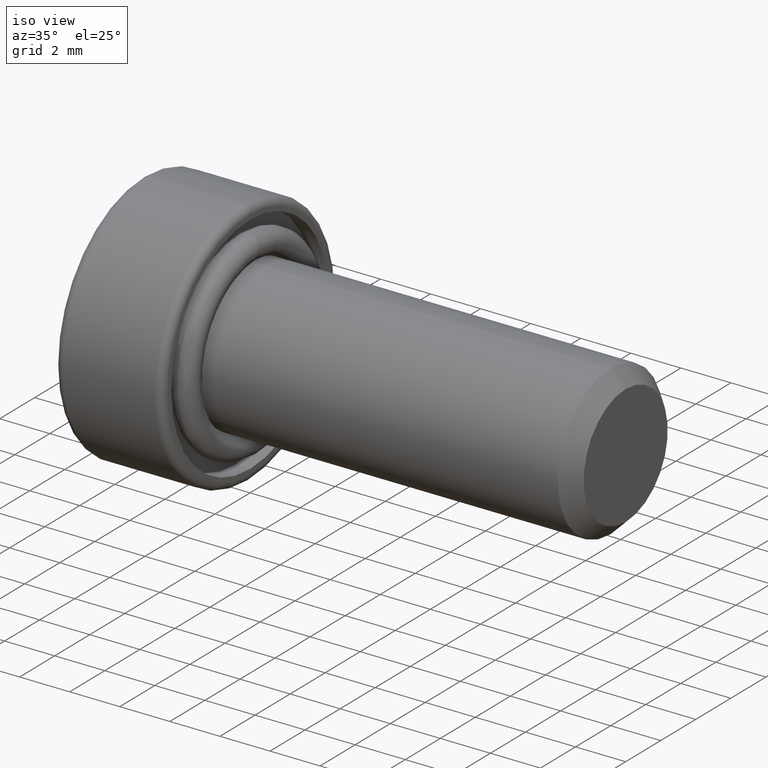
[diagram: clean part render]
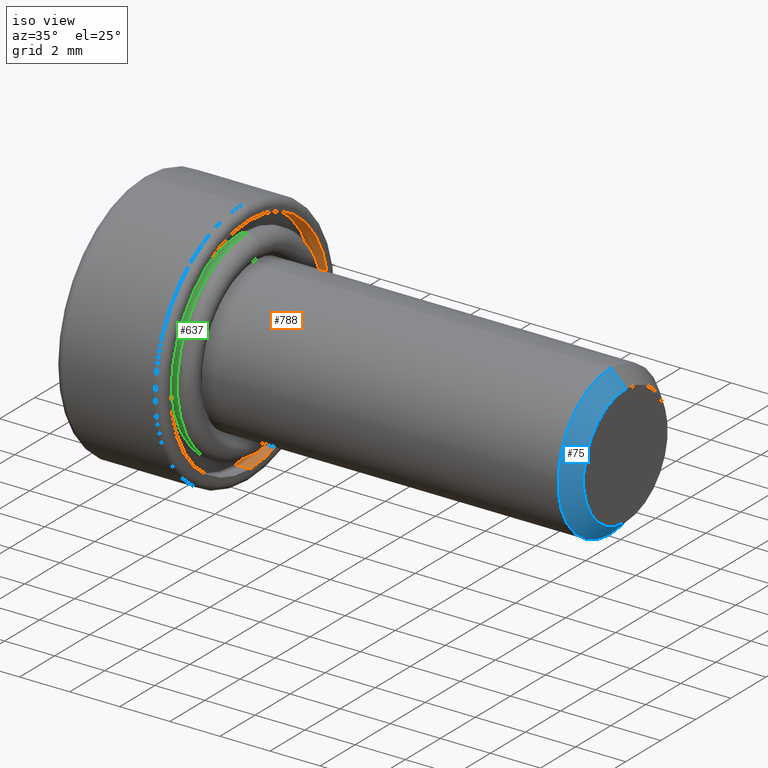
[diagram: same view with three faces highlighted in distinct colors, each labeled with its STEP entity id]
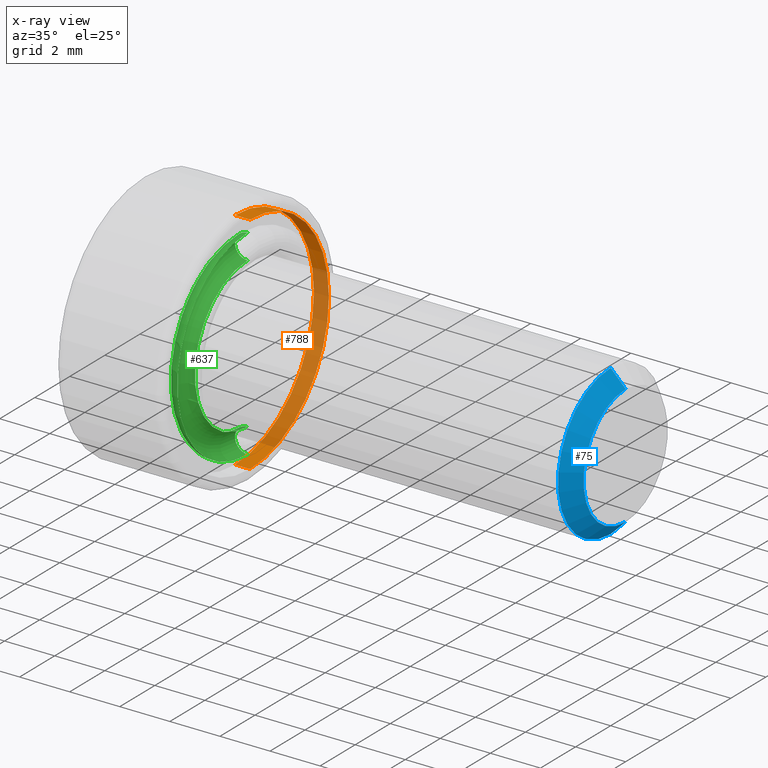
[diagram: x-ray of the same camera — body ghosted, the three highlighted faces saturated]
A machine part, iso view with three faces highlighted in distinct colors.
The next image is the same camera in x-ray (body ghosted, the three faces saturated) — at least one of them is partly hidden behind the body in this view.
Their STEP definitions:

[orange] entity #788 — the highlighted cylindrical surface (partial cylindrical patch) has radius 4.5 mm, axis along (1, 0, 0).
#8 = CARTESIAN_POINT ( 'NONE',  ( -0.5999999999999999800, 0.0000000000000000000, 0.0000000000000000000 ) ) ;
#15 = EDGE_CURVE ( 'NONE', #808, #364, #651, .T. ) ;
#22 = ORIENTED_EDGE ( 'NONE', *, *, #24, .F. ) ;
#24 = EDGE_CURVE ( 'NONE', #42, #39, #818, .T. ) ;
#32 = AXIS2_PLACEMENT_3D ( 'NONE', #8, #192, #392 ) ;
#39 = VERTEX_POINT ( 'NONE', #205 ) ;
#42 = VERTEX_POINT ( 'NONE', #424 ) ;
#72 = EDGE_LOOP ( 'NONE', ( #22, #654, #754, #747 ) ) ;
#89 = FACE_OUTER_BOUND ( 'NONE', #72, .T. ) ;
#175 = CARTESIAN_POINT ( 'NONE',  ( -0.5999999999999999800, 0.0000000000000000000, -4.500000000000000000 ) ) ;
#192 = DIRECTION ( 'NONE',  ( 1.000000000000000000, 0.0000000000000000000, 0.0000000000000000000 ) ) ;
#205 = CARTESIAN_POINT ( 'NONE',  ( 0.0000000000000000000, 5.510910596163088600E-016, 4.500000000000000000 ) ) ;
#219 = AXIS2_PLACEMENT_3D ( 'NONE', #681, #469, #701 ) ;
#305 = CARTESIAN_POINT ( 'NONE',  ( -0.5999999999999999800, 0.0000000000000000000, 0.0000000000000000000 ) ) ;
#312 = DIRECTION ( 'NONE',  ( 1.000000000000000000, -0.0000000000000000000, -0.0000000000000000000 ) ) ;
#350 = VECTOR ( 'NONE', #312, 1000.000000000000000 ) ;
#364 = VERTEX_POINT ( 'NONE', #564 ) ;
#376 = EDGE_CURVE ( 'NONE', #808, #42, #579, .T. ) ;
#392 = DIRECTION ( 'NONE',  ( 0.0000000000000000000, 0.0000000000000000000, -1.000000000000000000 ) ) ;
#424 = CARTESIAN_POINT ( 'NONE',  ( -0.5999999999999999800, 5.510910596163088600E-016, 4.500000000000000000 ) ) ;
#469 = DIRECTION ( 'NONE',  ( 1.000000000000000000, 0.0000000000000000000, 0.0000000000000000000 ) ) ;
#478 = DIRECTION ( 'NONE',  ( 1.000000000000000000, -0.0000000000000000000, -0.0000000000000000000 ) ) ;
#485 = VECTOR ( 'NONE', #810, 1000.000000000000000 ) ;
#486 = CARTESIAN_POINT ( 'NONE',  ( -0.5999999999999999800, 5.510910596163088600E-016, 4.500000000000000000 ) ) ;
#564 = CARTESIAN_POINT ( 'NONE',  ( 0.0000000000000000000, 0.0000000000000000000, -4.500000000000000000 ) ) ;
#579 = CIRCLE ( 'NONE', #32, 4.500000000000000000 ) ;
#593 = AXIS2_PLACEMENT_3D ( 'NONE', #305, #478, #649 ) ;
#594 = CARTESIAN_POINT ( 'NONE',  ( -0.5999999999999999800, 0.0000000000000000000, -4.500000000000000000 ) ) ;
#649 = DIRECTION ( 'NONE',  ( 0.0000000000000000000, 0.0000000000000000000, -1.000000000000000000 ) ) ;
#650 = CYLINDRICAL_SURFACE ( 'NONE', #593, 4.500000000000000000 ) ;
#651 = LINE ( 'NONE', #175, #485 ) ;
#654 = ORIENTED_EDGE ( 'NONE', *, *, #376, .F. ) ;
#681 = CARTESIAN_POINT ( 'NONE',  ( 0.0000000000000000000, 0.0000000000000000000, 0.0000000000000000000 ) ) ;
#701 = DIRECTION ( 'NONE',  ( 0.0000000000000000000, 0.0000000000000000000, -1.000000000000000000 ) ) ;
#743 = CIRCLE ( 'NONE', #219, 4.500000000000000000 ) ;
#747 = ORIENTED_EDGE ( 'NONE', *, *, #752, .T. ) ;
#752 = EDGE_CURVE ( 'NONE', #364, #39, #743, .T. ) ;
#754 = ORIENTED_EDGE ( 'NONE', *, *, #15, .T. ) ;
#788 = ADVANCED_FACE ( 'NONE', ( #89 ), #650, .F. ) ;
#808 = VERTEX_POINT ( 'NONE', #594 ) ;
#810 = DIRECTION ( 'NONE',  ( 1.000000000000000000, -0.0000000000000000000, -0.0000000000000000000 ) ) ;
#818 = LINE ( 'NONE', #486, #350 ) ;

[blue] entity #75 — the highlighted conical surface has half-angle 45 deg.
#7 = DIRECTION ( 'NONE',  ( 0.0000000000000000000, 0.0000000000000000000, -1.000000000000000000 ) ) ;
#57 = EDGE_CURVE ( 'NONE', #199, #267, #783, .T. ) ;
#68 = CARTESIAN_POINT ( 'NONE',  ( 15.00000000000000000, 0.0000000000000000000, 0.0000000000000000000 ) ) ;
#75 = ADVANCED_FACE ( 'NONE', ( #292 ), #403, .T. ) ;
#82 = EDGE_CURVE ( 'NONE', #733, #708, #730, .T. ) ;
#94 = CARTESIAN_POINT ( 'NONE',  ( 14.40000000000000000, 3.673940397442060400E-016, -3.000000000000000400 ) ) ;
#109 = EDGE_CURVE ( 'NONE', #708, #267, #547, .T. ) ;
#113 = EDGE_LOOP ( 'NONE', ( #744, #726, #556, #230 ) ) ;
#121 = DIRECTION ( 'NONE',  ( -1.000000000000000000, 0.0000000000000000000, 0.0000000000000000000 ) ) ;
#186 = DIRECTION ( 'NONE',  ( -0.7071067811865489100, 8.659560562354918100E-017, -0.7071067811865462400 ) ) ;
#199 = VERTEX_POINT ( 'NONE', #618 ) ;
#230 = ORIENTED_EDGE ( 'NONE', *, *, #109, .F. ) ;
#251 = DIRECTION ( 'NONE',  ( 0.0000000000000000000, 0.0000000000000000000, -1.000000000000000000 ) ) ;
#267 = VERTEX_POINT ( 'NONE', #422 ) ;
#283 = CARTESIAN_POINT ( 'NONE',  ( 14.40000000000000000, 0.0000000000000000000, 0.0000000000000000000 ) ) ;
#289 = CIRCLE ( 'NONE', #663, 2.400000000000003000 ) ;
#292 = FACE_OUTER_BOUND ( 'NONE', #113, .T. ) ;
#300 = AXIS2_PLACEMENT_3D ( 'NONE', #313, #677, #383 ) ;
#310 = VECTOR ( 'NONE', #314, 999.9999999999998900 ) ;
#313 = CARTESIAN_POINT ( 'NONE',  ( 15.00000000000000000, 0.0000000000000000000, 0.0000000000000000000 ) ) ;
#314 = DIRECTION ( 'NONE',  ( -0.7071067811865489100, 0.0000000000000000000, 0.7071067811865462400 ) ) ;
#383 = DIRECTION ( 'NONE',  ( 0.0000000000000000000, 0.0000000000000000000, 1.000000000000000000 ) ) ;
#403 = CONICAL_SURFACE ( 'NONE', #300, 2.400000000000003000, 0.7853981633974465000 ) ;
#422 = CARTESIAN_POINT ( 'NONE',  ( 14.40000000000000000, 0.0000000000000000000, 3.000000000000000400 ) ) ;
#518 = DIRECTION ( 'NONE',  ( 1.000000000000000000, 0.0000000000000000000, 0.0000000000000000000 ) ) ;
#536 = AXIS2_PLACEMENT_3D ( 'NONE', #283, #121, #7 ) ;
#547 = CIRCLE ( 'NONE', #536, 3.000000000000000400 ) ;
#556 = ORIENTED_EDGE ( 'NONE', *, *, #57, .T. ) ;
#592 = VECTOR ( 'NONE', #186, 999.9999999999998900 ) ;
#618 = CARTESIAN_POINT ( 'NONE',  ( 15.00000000000000000, 0.0000000000000000000, 2.400000000000003000 ) ) ;
#659 = EDGE_CURVE ( 'NONE', #199, #733, #289, .T. ) ;
#663 = AXIS2_PLACEMENT_3D ( 'NONE', #68, #518, #251 ) ;
#677 = DIRECTION ( 'NONE',  ( -1.000000000000000000, 0.0000000000000000000, 0.0000000000000000000 ) ) ;
#689 = CARTESIAN_POINT ( 'NONE',  ( 15.00000000000000000, 3.306546357697855700E-016, -2.400000000000003000 ) ) ;
#708 = VERTEX_POINT ( 'NONE', #94 ) ;
#726 = ORIENTED_EDGE ( 'NONE', *, *, #659, .F. ) ;
#730 = LINE ( 'NONE', #812, #592 ) ;
#733 = VERTEX_POINT ( 'NONE', #689 ) ;
#736 = CARTESIAN_POINT ( 'NONE',  ( 15.00000000000000000, 0.0000000000000000000, 2.400000000000003000 ) ) ;
#744 = ORIENTED_EDGE ( 'NONE', *, *, #82, .F. ) ;
#783 = LINE ( 'NONE', #736, #310 ) ;
#812 = CARTESIAN_POINT ( 'NONE',  ( 15.00000000000000000, 2.939152317953651000E-016, -2.400000000000003000 ) ) ;

[green] entity #637 — the highlighted toroidal blend (fillet) surface has major radius 3.5 mm and minor (blend) radius 0.5 mm.
#3 = CARTESIAN_POINT ( 'NONE',  ( -0.1000000000000000700, 0.0000000000000000000, 0.0000000000000000000 ) ) ;
#6 = CARTESIAN_POINT ( 'NONE',  ( -0.1000000000000000100, 0.0000000000000000000, 0.0000000000000000000 ) ) ;
#31 = DIRECTION ( 'NONE',  ( 0.0000000000000000000, 0.0000000000000000000, -1.000000000000000000 ) ) ;
#35 = EDGE_CURVE ( 'NONE', #218, #160, #503, .T. ) ;
#47 = DIRECTION ( 'NONE',  ( -0.0000000000000000000, -1.000000000000000000, -0.0000000000000000000 ) ) ;
#53 = CIRCLE ( 'NONE', #299, 2.999999999999999600 ) ;
#80 = DIRECTION ( 'NONE',  ( 1.000000000000000000, -0.0000000000000000000, -0.0000000000000000000 ) ) ;
#95 = VERTEX_POINT ( 'NONE', #369 ) ;
#127 = ORIENTED_EDGE ( 'NONE', *, *, #461, .T. ) ;
#133 = FACE_OUTER_BOUND ( 'NONE', #542, .T. ) ;
#153 = DIRECTION ( 'NONE',  ( 0.0000000000000000000, 0.0000000000000000000, -1.000000000000000000 ) ) ;
#160 = VERTEX_POINT ( 'NONE', #379 ) ;
#204 = DIRECTION ( 'NONE',  ( 0.0000000000000000000, 0.0000000000000000000, -1.000000000000000000 ) ) ;
#218 = VERTEX_POINT ( 'NONE', #425 ) ;
#225 = VERTEX_POINT ( 'NONE', #575 ) ;
#299 = AXIS2_PLACEMENT_3D ( 'NONE', #3, #790, #31 ) ;
#322 = ORIENTED_EDGE ( 'NONE', *, *, #497, .F. ) ;
#340 = CARTESIAN_POINT ( 'NONE',  ( -0.1000000000000000100, 0.0000000000000000000, 0.0000000000000000000 ) ) ;
#368 = AXIS2_PLACEMENT_3D ( 'NONE', #6, #695, #153 ) ;
#369 = CARTESIAN_POINT ( 'NONE',  ( -0.1000000000000000700, 3.673940397442059400E-016, 2.999999999999999600 ) ) ;
#374 = CIRCLE ( 'NONE', #407, 0.5000000000000004400 ) ;
#379 = CARTESIAN_POINT ( 'NONE',  ( -0.1000000000000000100, 0.0000000000000000000, -4.000000000000000000 ) ) ;
#407 = AXIS2_PLACEMENT_3D ( 'NONE', #442, #505, #560 ) ;
#425 = CARTESIAN_POINT ( 'NONE',  ( -0.1000000000000000700, 0.0000000000000000000, -2.999999999999999600 ) ) ;
#435 = TOROIDAL_SURFACE ( 'NONE', #697, 3.499999999999999600, 0.5000000000000001100 ) ;
#442 = CARTESIAN_POINT ( 'NONE',  ( -0.1000000000000000100, 4.286263797015736100E-016, 3.499999999999999600 ) ) ;
#450 = CARTESIAN_POINT ( 'NONE',  ( -0.1000000000000000100, 0.0000000000000000000, -3.499999999999999600 ) ) ;
#461 = EDGE_CURVE ( 'NONE', #95, #218, #53, .T. ) ;
#497 = EDGE_CURVE ( 'NONE', #225, #160, #541, .T. ) ;
#502 = EDGE_CURVE ( 'NONE', #95, #225, #374, .T. ) ;
#503 = CIRCLE ( 'NONE', #762, 0.5000000000000004400 ) ;
#505 = DIRECTION ( 'NONE',  ( 0.0000000000000000000, 1.000000000000000000, -1.224646799147353200E-016 ) ) ;
#528 = ORIENTED_EDGE ( 'NONE', *, *, #502, .F. ) ;
#541 = CIRCLE ( 'NONE', #368, 4.000000000000000000 ) ;
#542 = EDGE_LOOP ( 'NONE', ( #322, #528, #127, #778 ) ) ;
#560 = DIRECTION ( 'NONE',  ( 0.0000000000000000000, 1.224646799147352500E-016, 1.000000000000000000 ) ) ;
#565 = DIRECTION ( 'NONE',  ( 0.0000000000000000000, 0.0000000000000000000, -1.000000000000000000 ) ) ;
#575 = CARTESIAN_POINT ( 'NONE',  ( -0.1000000000000000100, 4.898587196589412800E-016, 4.000000000000000000 ) ) ;
#637 = ADVANCED_FACE ( 'NONE', ( #133 ), #435, .T. ) ;
#695 = DIRECTION ( 'NONE',  ( 1.000000000000000000, -0.0000000000000000000, -0.0000000000000000000 ) ) ;
#697 = AXIS2_PLACEMENT_3D ( 'NONE', #340, #80, #204 ) ;
#762 = AXIS2_PLACEMENT_3D ( 'NONE', #450, #47, #565 ) ;
#778 = ORIENTED_EDGE ( 'NONE', *, *, #35, .T. ) ;
#790 = DIRECTION ( 'NONE',  ( 1.000000000000000000, -0.0000000000000000000, -0.0000000000000000000 ) ) ;